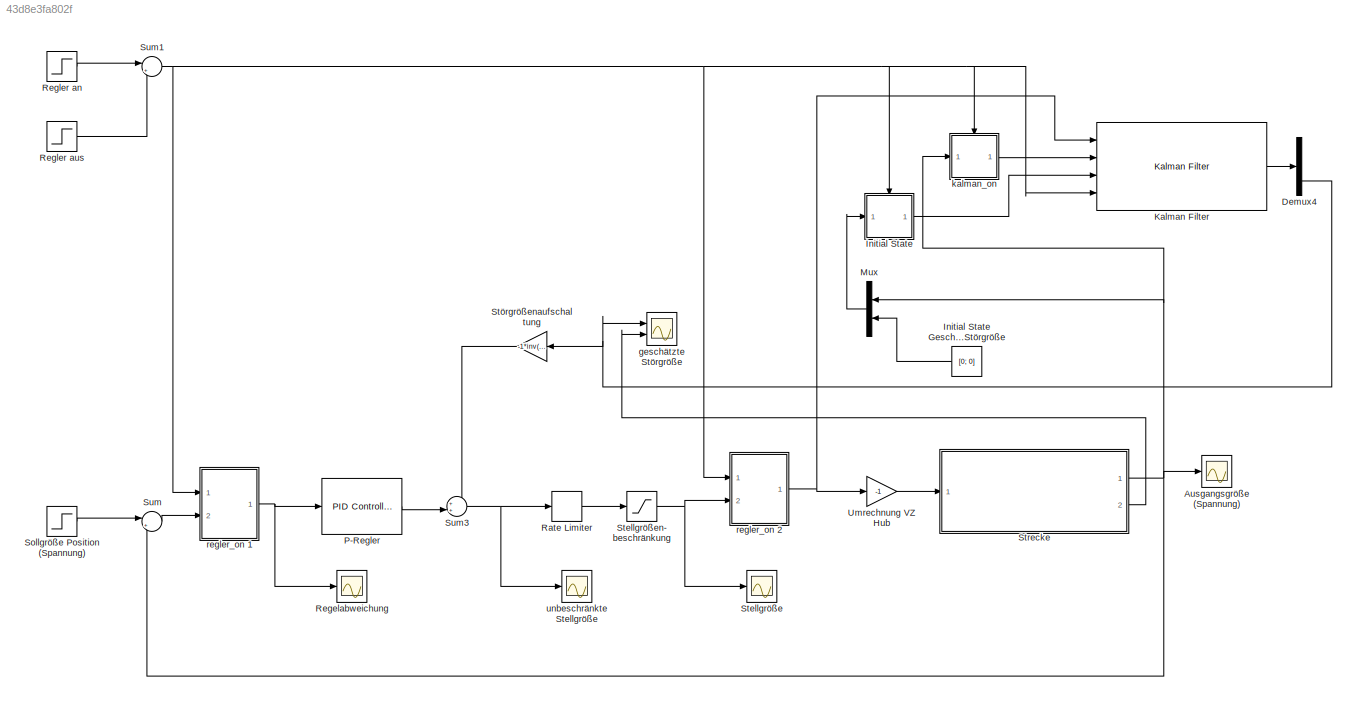
MODEL slx_43d8e3fa802f
KIND model
CONFIG AbsTol = auto
CONFIG EnableMultiTasking = off
CONFIG FixedStep = auto
CONFIG MaxStep = auto
CONFIG MinStep = auto
CONFIG RelTol = 1e-3
CONFIG SampleTimeConstraint = Unconstrained
CONFIG Solver = VariableStepAuto
CONFIG SolverName = VariableStepAuto
CONFIG StartTime = 0.0
CONFIG StopTime = 30.0
BLOCK [Scope] Ausgangsgröße (Spannung)
  NumInputPorts = 1
  Ports = [1]
  ScopeSpecificationString = Simulink.scopes.TimeScopeBlockCfg('CurrentConfiguration', extmgr.ConfigurationSet(extmgr.Configuration('Core','General UI',true),extmgr.Configuration('Core','Source UI',true),extmgr.Configuration('Sources','WiredSimulink',true,'DataLoggingVariableName','ScopeData1'),extmgr.Configuration('Visuals','Time Domain',true,'SerializedDisplays',{struct('MinYLimReal','-0.07079','MaxYLimReal','0.61896','YLab...<+1441ch>
BLOCK [Demux] Demux4
  DisplayOption = bar
  Outputs = 3
  Ports = [1, 3]
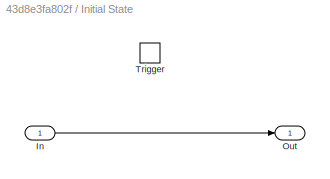
BLOCK [SubSystem] Initial State
  Ports = [1, 1, 0, 1]
  RequestExecContextInheritance = off
  TreatAsAtomicUnit = on
  Variant = off
BLOCK [Constant] Initial State Geschwindigkeit, Störgröße
  Value = [0; 0]
  VectorParams1D = off
BLOCK [Inport] Initial State/In
  IconDisplay = Port number
BLOCK [Outport] Initial State/Out
  IconDisplay = Port number
BLOCK [TriggerPort] Initial State/Trigger
  Ports = []
  StatesWhenEnabling = held
  VariantControl = Variant
BLOCK [Reference] Kalman Filter  REF=ctrlSharedLib/Kalman Filter
  Ports = [4, 1]
  SourceBlock = ctrlSharedLib/Kalman Filter
  SourceType = ctrlKalmanFilter
BLOCK [Mux] Mux
  DisplayOption = bar
  Inputs = 2
  Ports = [2, 1]
BLOCK [Reference] P-Regler  REF=simulink/Continuous/PID Controller
  Ports = [1, 1]
  SourceBlock = simulink/Continuous/PID Controller
  SourceType = PID 1dof
BLOCK [RateLimiter] Rate Limiter
  FallingSlewLimit = -0.23024
  RisingSlewLimit = 0.23024
  SampleTimeMode = inherited
BLOCK [Scope] Regelabweichung
  NumInputPorts = 1
  Ports = [1]
  ScopeSpecificationString = Simulink.scopes.TimeScopeBlockCfg('CurrentConfiguration', extmgr.ConfigurationSet(extmgr.Configuration('Core','General UI',true),extmgr.Configuration('Core','Source UI',true),extmgr.Configuration('Sources','WiredSimulink',true,'DataLoggingVariableName','ScopeData3'),extmgr.Configuration('Visuals','Time Domain',true,'SerializedDisplays',{struct('MinYLimReal','-0.07089','MaxYLimReal','0.56582','YLab...<+1370ch>
BLOCK [Step] Regler an
  SampleTime = 0
  Time = 2
BLOCK [Step] Regler aus
  After = -1
  SampleTime = 0
  Time = 30
BLOCK [Step] Sollgröße Position (Spannung)
  After = 0.5
  SampleTime = 0
  Time = 0
BLOCK [Scope] Stellgröße
  NumInputPorts = 1
  Ports = [1]
  ScopeSpecificationString = Simulink.scopes.TimeScopeBlockCfg('CurrentConfiguration', extmgr.ConfigurationSet(extmgr.Configuration('Core','General UI',true),extmgr.Configuration('Core','Source UI',true),extmgr.Configuration('Sources','WiredSimulink',true,'DataLoggingVariableName','ScopeData2'),extmgr.Configuration('Visuals','Time Domain',true,'SerializedDisplays',{struct('MinYLimReal','-0.04656','MaxYLimReal','0.28914','YLab...<+1413ch>
BLOCK [Saturate] Stellgrößen- beschränkung
  InputPortMap = u0
  LowerLimit = -1
  Ports = [1, 1]
  UpperLimit = 1
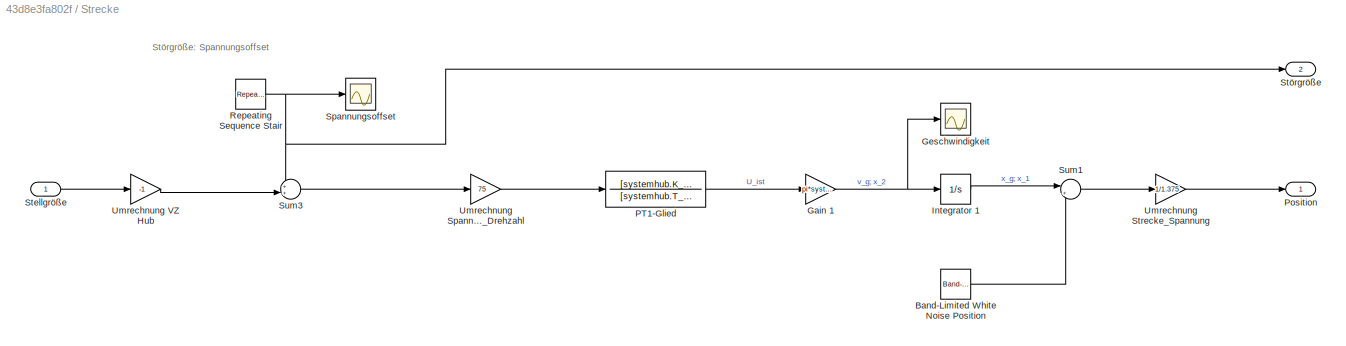
BLOCK [SubSystem] Strecke
  Ports = [1, 2]
  RequestExecContextInheritance = off
  Variant = off
BLOCK [Reference] Strecke/Band-Limited White Noise Position  REF=simulink/Sources/Band-Limited
White Noise
  Ports = [0, 1]
  SourceBlock = simulink/Sources/Band-Limited\nWhite Noise
  SourceType = Band-Limited White Noise.
BLOCK [Gain] Strecke/Gain 1
  Gain = pi*systemhub.R/systemhub.ue
  OutDataTypeStr = Inherit: Inherit via internal rule
  ParamDataTypeStr = Inherit: Inherit via internal rule
  SaturateOnIntegerOverflow = off
BLOCK [Scope] Strecke/Geschwindigkeit
  NumInputPorts = 1
  Ports = [1]
  ScopeSpecificationString = Simulink.scopes.TimeScopeBlockCfg('CurrentConfiguration', extmgr.ConfigurationSet(extmgr.Configuration('Core','General UI',true),extmgr.Configuration('Core','Source UI',true),extmgr.Configuration('Sources','WiredSimulink',true,'DataLoggingVariableName','ScopeData2'),extmgr.Configuration('Visuals','Time Domain',true,'SerializedDisplays',{struct('MinYLimReal','-0.06736','MaxYLimReal','0.49338','YLab...<+1396ch>
BLOCK [Integrator] Strecke/Integrator 1
  Ports = [1, 1]
BLOCK [TransferFcn] Strecke/PT1-Glied
  Denominator = [systemhub.T_G,1]
  Numerator = [systemhub.K_G]
BLOCK [Outport] Strecke/Position
  IconDisplay = Port number
BLOCK [Reference] Strecke/Repeating Sequence Stair  REF=simulink/Sources/Repeating
Sequence
Stair
  Ports = [0, 1]
  SourceBlock = simulink/Sources/Repeating\nSequence\nStair
  SourceType = Repeating Sequence Stair
BLOCK [Scope] Strecke/Spannungsoffset
  NumInputPorts = 1
  Ports = [1]
  ScopeSpecificationString = Simulink.scopes.TimeScopeBlockCfg('CurrentConfiguration', extmgr.ConfigurationSet(extmgr.Configuration('Core','General UI',true),extmgr.Configuration('Core','Source UI',true),extmgr.Configuration('Sources','WiredSimulink',true,'DataLoggingLimitDataPoints',true,'DataLoggingSaveFormat','Array','DataLoggingDecimation','1','DataLoggingDecimateData',true),extmgr.Configuration('Visuals','Time Domain',tr...<+1459ch>
BLOCK [Inport] Strecke/Stellgröße
  IconDisplay = Port number
BLOCK [Outport] Strecke/Störgröße
  IconDisplay = Port number
  Port = 2
BLOCK [Sum] Strecke/Sum1
  IconShape = round
  InputSameDT = off
  Inputs = |++
  OutDataTypeStr = Inherit: Inherit via internal rule
  Ports = [2, 1]
  SaturateOnIntegerOverflow = off
BLOCK [Sum] Strecke/Sum3
  IconShape = round
  InputSameDT = off
  Inputs = ++|
  OutDataTypeStr = Inherit: Inherit via internal rule
  Ports = [2, 1]
  SaturateOnIntegerOverflow = off
BLOCK [Gain] Strecke/Umrechnung Spannung_Drehzahl
  Gain = 75
  OutDataTypeStr = Inherit: Inherit via internal rule
  ParamDataTypeStr = Inherit: Inherit via internal rule
  SaturateOnIntegerOverflow = off
BLOCK [Gain] Strecke/Umrechnung Strecke_Spannung
  Gain = 1/1.375
  OutDataTypeStr = Inherit: Inherit via internal rule
  ParamDataTypeStr = Inherit: Inherit via internal rule
  SaturateOnIntegerOverflow = off
BLOCK [Gain] Strecke/Umrechnung VZ Hub
  Gain = -1
  OutDataTypeStr = Inherit: Inherit via internal rule
  ParamDataTypeStr = Inherit: Inherit via internal rule
  SaturateOnIntegerOverflow = off
BLOCK [Gain] Störgrößenaufschaltung
  Gain = -1*inv(matB_hub'*matB_hub)*matB_hub'*matE_hub
  Multiplication = Matrix(K*u)
  OutDataTypeStr = Inherit: Inherit via internal rule
  ParamDataTypeStr = Inherit: Inherit via internal rule
  SaturateOnIntegerOverflow = off
BLOCK [Sum] Sum
  IconShape = round
  InputSameDT = off
  Inputs = |+-
  OutDataTypeStr = Inherit: Inherit via internal rule
  Ports = [2, 1]
  SaturateOnIntegerOverflow = off
BLOCK [Sum] Sum1
  IconShape = round
  InputSameDT = off
  Inputs = |++
  OutDataTypeStr = Inherit: Inherit via internal rule
  Ports = [2, 1]
  SaturateOnIntegerOverflow = off
BLOCK [Sum] Sum3
  IconShape = round
  InputSameDT = off
  Inputs = ++|
  OutDataTypeStr = Inherit: Inherit via internal rule
  Ports = [2, 1]
  SaturateOnIntegerOverflow = off
BLOCK [Gain] Umrechnung VZ Hub
  Gain = -1
  OutDataTypeStr = Inherit: Inherit via internal rule
  ParamDataTypeStr = Inherit: Inherit via internal rule
  SaturateOnIntegerOverflow = off
BLOCK [Scope] geschätzte Störgröße
  NumInputPorts = 2
  Ports = [2]
  ScopeSpecificationString = Simulink.scopes.TimeScopeBlockCfg('CurrentConfiguration', extmgr.ConfigurationSet(extmgr.Configuration('Core','General UI',true),extmgr.Configuration('Core','Source UI',true),extmgr.Configuration('Sources','WiredSimulink',true,'DataLoggingVariableName','ScopeData1'),extmgr.Configuration('Visuals','Time Domain',true,'SerializedDisplays',{struct('MinYLimReal','-0.00114','MaxYLimReal','0.00946','YLab...<+1452ch>
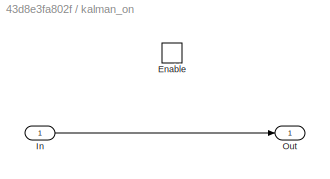
BLOCK [SubSystem] kalman_on
  Ports = [1, 1, 1]
  RequestExecContextInheritance = off
  TreatAsAtomicUnit = on
  Variant = off
BLOCK [EnablePort] kalman_on/Enable
  Ports = []
BLOCK [Inport] kalman_on/In
  IconDisplay = Port number
BLOCK [Outport] kalman_on/Out
  IconDisplay = Port number
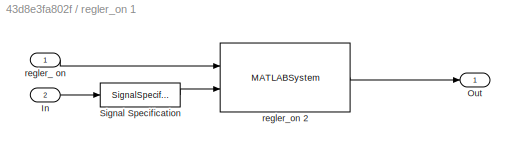
BLOCK [SubSystem] regler_on 1
  Ports = [2, 1]
  RequestExecContextInheritance = off
  Variant = off
BLOCK [Inport] regler_on 1/In
  IconDisplay = Port number
  Port = 2
BLOCK [Outport] regler_on 1/Out
  IconDisplay = Port number
BLOCK [SignalSpecification] regler_on 1/Signal Specification
  Dimensions = 1
BLOCK [Inport] regler_on 1/regler_ on
  IconDisplay = Port number
BLOCK [MATLABSystem] regler_on 1/regler_on 2
  MaskDisplay = disp('regler_switch_1');\nport_label('input',1,'regler_on');\nport_label('input',2,'input');\nport_label('output',1,'y');
  MaskType = regler_switch_1
  Ports = [2, 1]
  SimulateUsing = Code generation
  System = regler_switch_1
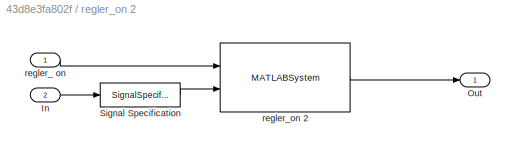
BLOCK [SubSystem] regler_on 2
  Ports = [2, 1]
  RequestExecContextInheritance = off
  Variant = off
BLOCK [Inport] regler_on 2/In
  IconDisplay = Port number
  Port = 2
BLOCK [Outport] regler_on 2/Out
  IconDisplay = Port number
BLOCK [SignalSpecification] regler_on 2/Signal Specification
  Dimensions = 1
BLOCK [Inport] regler_on 2/regler_ on
  IconDisplay = Port number
BLOCK [MATLABSystem] regler_on 2/regler_on 2
  MaskDisplay = disp('regler_switch_1');\nport_label('input',1,'regler_on');\nport_label('input',2,'input');\nport_label('output',1,'y');
  MaskType = regler_switch_1
  Ports = [2, 1]
  SimulateUsing = Code generation
  System = regler_switch_1
BLOCK [Scope] unbeschränkte Stellgröße
  NumInputPorts = 1
  Ports = [1]
  ScopeSpecificationString = Simulink.scopes.TimeScopeBlockCfg('CurrentConfiguration', extmgr.ConfigurationSet(extmgr.Configuration('Core','General UI',true),extmgr.Configuration('Core','Source UI',true),extmgr.Configuration('Sources','WiredSimulink',true,'DataLoggingVariableName','ScopeData4'),extmgr.Configuration('Visuals','Time Domain',true,'SerializedDisplays',{struct('MinYLimReal','-0.06611','MaxYLimReal','0.44981','YLab...<+1392ch>
ANNOTATION Strecke: Störgröße: Spannungsoffset
NET Demux4:3 -> Störgrößenaufschaltung:1, geschätzte Störgröße:1
LINE Initial State Geschwindigkeit, Störgröße:1 -> Mux:2
LINE Initial State/In:1 -> Initial State/Out:1
LINE Initial State:1 -> Kalman Filter:3
LINE Kalman Filter:1 -> Demux4:1
LINE Mux:1 -> Initial State:1
LINE P-Regler:1 -> Sum3:2
LINE Rate Limiter:1 -> Stellgrößen- beschränkung:1
LINE Regler an:1 -> Sum1:1
LINE Regler aus:1 -> Sum1:2
LINE Sollgröße Position (Spannung):1 -> Sum:1
NET Stellgrößen- beschränkung:1 -> Stellgröße:1, regler_on 2:2
LINE Strecke/Band-Limited White Noise Position:1 -> Strecke/Sum1:2
NET Strecke/Gain 1:1 -> Strecke/Geschwindigkeit:1, Strecke/Integrator 1:1
LINE Strecke/Integrator 1:1 -> Strecke/Sum1:1
LINE Strecke/PT1-Glied:1 -> Strecke/Gain 1:1
NET Strecke/Repeating Sequence Stair:1 -> Strecke/Spannungsoffset:1, Strecke/Störgröße:1, Strecke/Sum3:1
LINE Strecke/Stellgröße:1 -> Strecke/Umrechnung VZ Hub:1
LINE Strecke/Sum1:1 -> Strecke/Umrechnung Strecke_Spannung:1
LINE Strecke/Sum3:1 -> Strecke/Umrechnung Spannung_Drehzahl:1
LINE Strecke/Umrechnung Spannung_Drehzahl:1 -> Strecke/PT1-Glied:1
LINE Strecke/Umrechnung Strecke_Spannung:1 -> Strecke/Position:1
LINE Strecke/Umrechnung VZ Hub:1 -> Strecke/Sum3:2
NET Strecke:1 -> Ausgangsgröße (Spannung):1, Mux:1, Sum:2, kalman_on:1
LINE Strecke:2 -> geschätzte Störgröße:2
LINE Störgrößenaufschaltung:1 -> Sum3:1
NET Sum1:1 -> Initial State:trigger, Kalman Filter:4, kalman_on:enable, regler_on 1:1, regler_on 2:1
NET Sum3:1 -> Rate Limiter:1, unbeschränkte Stellgröße:1
LINE Sum:1 -> regler_on 1:2
LINE Umrechnung VZ Hub:1 -> Strecke:1
LINE kalman_on/In:1 -> kalman_on/Out:1
LINE kalman_on:1 -> Kalman Filter:2
LINE regler_on 1/In:1 -> regler_on 1/Signal Specification:1
LINE regler_on 1/Signal Specification:1 -> regler_on 1/regler_on 2:2
LINE regler_on 1/regler_ on:1 -> regler_on 1/regler_on 2:1
LINE regler_on 1/regler_on 2:1 -> regler_on 1/Out:1
NET regler_on 1:1 -> P-Regler:1, Regelabweichung:1
LINE regler_on 2/In:1 -> regler_on 2/Signal Specification:1
LINE regler_on 2/Signal Specification:1 -> regler_on 2/regler_on 2:2
LINE regler_on 2/regler_ on:1 -> regler_on 2/regler_on 2:1
LINE regler_on 2/regler_on 2:1 -> regler_on 2/Out:1
NET regler_on 2:1 -> Kalman Filter:1, Umrechnung VZ Hub:1
note: NET lines group one-source signal fan-out (src -> all destinations, sorted); 1:1 wires keep LINE
